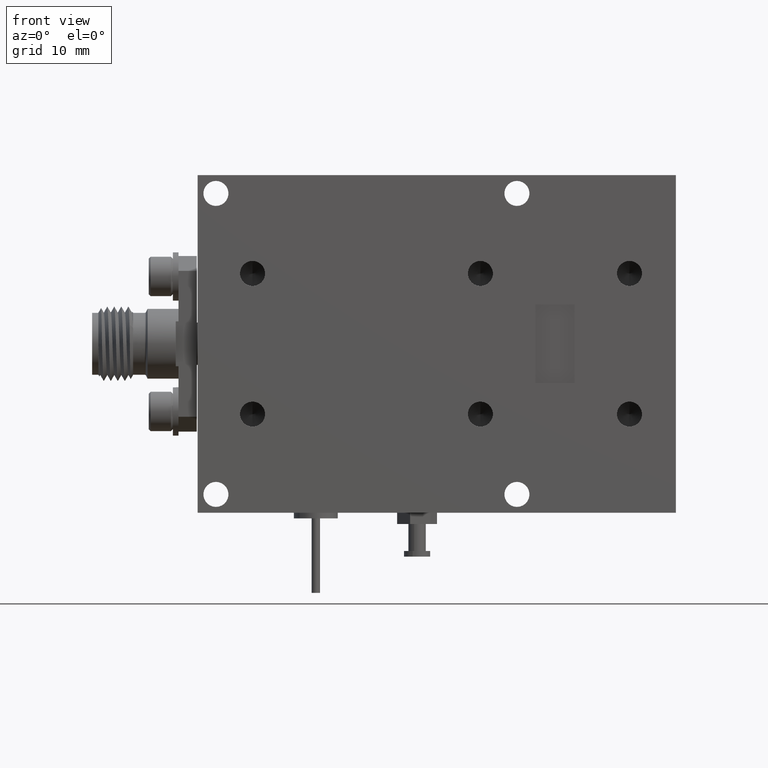
[diagram: clean part render]
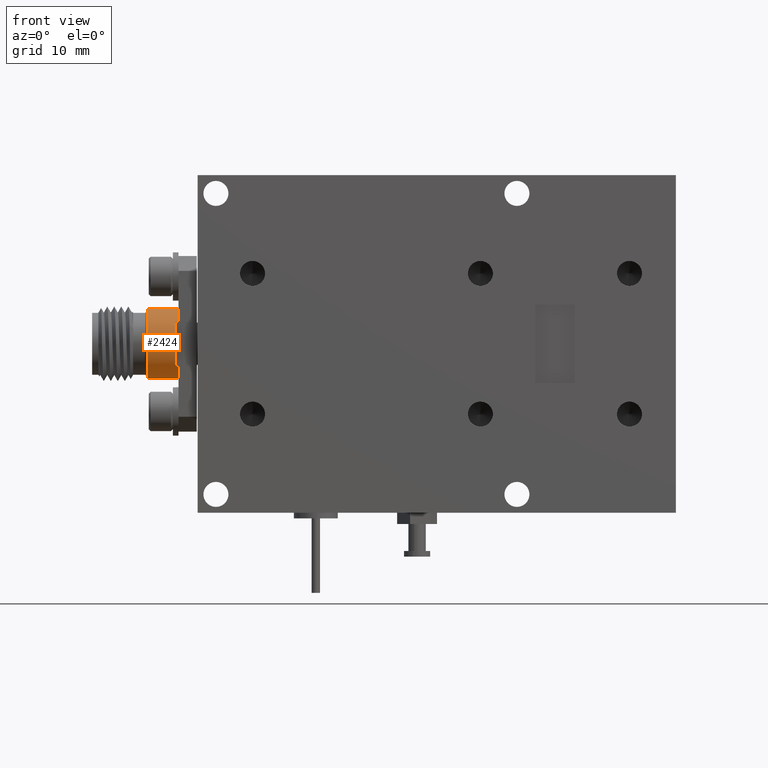
[diagram: same view with one face highlighted and labeled with its STEP entity id]
A machine part, front view. The second image highlights one B-rep face of the part: STEP entity #2424.
In plain terms, the highlighted cylindrical surface (edge-blend (fillet) strip) has radius 3.1496 mm, axis along (1, -0, -0).
Its self-contained STEP definition (entity closure, byte-faithful):
#54 = LINE ( 'NONE', #251, #10638 ) ;
#251 = CARTESIAN_POINT ( 'NONE',  ( -0.6779999999999999400, 0.1549999999999997200, 0.08019316156358830000 ) ) ;
#485 = ORIENTED_EDGE ( 'NONE', *, *, #3571, .F. ) ;
#547 = CARTESIAN_POINT ( 'NONE',  ( -0.6779999999999999400, 0.1549999999999997200, -0.07919316156358610600 ) ) ;
#878 = EDGE_LOOP ( 'NONE', ( #485, #4818, #5709, #11933, #8525, #1315, #1383, #10272 ) ) ;
#927 = VECTOR ( 'NONE', #13241, 39.37007874015748100 ) ;
#1087 = DIRECTION ( 'NONE',  ( 0.0000000000000000000, 0.0000000000000000000, 1.000000000000000000 ) ) ;
#1315 = ORIENTED_EDGE ( 'NONE', *, *, #9221, .T. ) ;
#1383 = ORIENTED_EDGE ( 'NONE', *, *, #6502, .T. ) ;
#1600 = CARTESIAN_POINT ( 'NONE',  ( -0.6779999999999999400, 0.1549999999999995800, 0.08019316156358830000 ) ) ;
#1625 = VERTEX_POINT ( 'NONE', #13250 ) ;
#1709 = CIRCLE ( 'NONE', #4775, 0.1240000000000002600 ) ;
#1876 = DIRECTION ( 'NONE',  ( 1.000000000000000000, -1.665334536944816800E-016, -1.526556658857922800E-016 ) ) ;
#2056 = AXIS2_PLACEMENT_3D ( 'NONE', #3343, #2348, #6300 ) ;
#2348 = DIRECTION ( 'NONE',  ( 1.000000000000000000, -1.665334536944816800E-016, -1.526556658857922800E-016 ) ) ;
#2424 = ADVANCED_FACE ( 'NONE', ( #12260 ), #11943, .T. ) ;
#2580 = VERTEX_POINT ( 'NONE', #13245 ) ;
#2622 = DIRECTION ( 'NONE',  ( 1.000000000000000000, -1.665334536944817100E-016, -1.110223024623489100E-016 ) ) ;
#2784 = VERTEX_POINT ( 'NONE', #8490 ) ;
#3256 = CARTESIAN_POINT ( 'NONE',  ( -0.6680000000000003700, 0.1549999999999997200, 0.08019316156358830000 ) ) ;
#3343 = CARTESIAN_POINT ( 'NONE',  ( -0.7780000000000000200, 0.2500000000000002200, 0.0005000000000010259900 ) ) ;
#3571 = EDGE_CURVE ( 'NONE', #2784, #12808, #8310, .T. ) ;
#3943 = CARTESIAN_POINT ( 'NONE',  ( -0.6680000000000003700, 0.2500000000000000600, 0.1245000000000010300 ) ) ;
#4069 = CARTESIAN_POINT ( 'NONE',  ( -0.7880000000000001400, 0.2500000000000001100, -0.1234999999999992500 ) ) ;
#4360 = AXIS2_PLACEMENT_3D ( 'NONE', #4840, #7858, #8909 ) ;
#4484 = DIRECTION ( 'NONE',  ( 1.000000000000000000, -1.665334536944816800E-016, -1.526556658857922800E-016 ) ) ;
#4775 = AXIS2_PLACEMENT_3D ( 'NONE', #5371, #8546, #1087 ) ;
#4786 = VERTEX_POINT ( 'NONE', #3256 ) ;
#4818 = ORIENTED_EDGE ( 'NONE', *, *, #12037, .T. ) ;
#4840 = CARTESIAN_POINT ( 'NONE',  ( -0.6779999999999999400, 0.2500000000000001100, 0.0005000000000010259900 ) ) ;
#5326 = EDGE_CURVE ( 'NONE', #2580, #1625, #1709, .T. ) ;
#5371 = CARTESIAN_POINT ( 'NONE',  ( -0.6680000000000003700, 0.2500000000000001100, 0.0005000000000010259900 ) ) ;
#5437 = AXIS2_PLACEMENT_3D ( 'NONE', #11033, #2622, #12078 ) ;
#5709 = ORIENTED_EDGE ( 'NONE', *, *, #12371, .T. ) ;
#5819 = EDGE_CURVE ( 'NONE', #4786, #12808, #8195, .T. ) ;
#6013 = DIRECTION ( 'NONE',  ( 1.000000000000000000, -1.665334536944817100E-016, -1.110223024623489100E-016 ) ) ;
#6300 = DIRECTION ( 'NONE',  ( 0.0000000000000000000, 0.0000000000000000000, 1.000000000000000000 ) ) ;
#6502 = EDGE_CURVE ( 'NONE', #9131, #4786, #54, .T. ) ;
#6764 = LINE ( 'NONE', #4069, #927 ) ;
#6877 = CARTESIAN_POINT ( 'NONE',  ( -0.7880000000000001400, 0.2500000000000001100, 0.1245000000000012900 ) ) ;
#7025 = AXIS2_PLACEMENT_3D ( 'NONE', #7723, #13148, #9999 ) ;
#7223 = CARTESIAN_POINT ( 'NONE',  ( -0.6779999999999999400, 0.1549999999999997200, -0.07919316156358610600 ) ) ;
#7436 = CIRCLE ( 'NONE', #2056, 0.1240000000000002600 ) ;
#7723 = CARTESIAN_POINT ( 'NONE',  ( -0.6680000000000003700, 0.2500000000000001100, 0.0005000000000010259900 ) ) ;
#7858 = DIRECTION ( 'NONE',  ( -1.000000000000000000, 1.665334536944816800E-016, 1.526556658857922800E-016 ) ) ;
#8195 = CIRCLE ( 'NONE', #7025, 0.1240000000000002600 ) ;
#8310 = LINE ( 'NONE', #6877, #8643 ) ;
#8490 = CARTESIAN_POINT ( 'NONE',  ( -0.7780000000000000200, 0.2500000000000000600, 0.1245000000000010300 ) ) ;
#8525 = ORIENTED_EDGE ( 'NONE', *, *, #9377, .F. ) ;
#8546 = DIRECTION ( 'NONE',  ( -1.000000000000000000, 1.665334536944816800E-016, 1.526556658857922800E-016 ) ) ;
#8643 = VECTOR ( 'NONE', #6013, 39.37007874015748100 ) ;
#8909 = DIRECTION ( 'NONE',  ( 0.0000000000000000000, 0.0000000000000000000, 1.000000000000000000 ) ) ;
#9131 = VERTEX_POINT ( 'NONE', #1600 ) ;
#9221 = EDGE_CURVE ( 'NONE', #9475, #9131, #11386, .T. ) ;
#9377 = EDGE_CURVE ( 'NONE', #9475, #1625, #9873, .T. ) ;
#9475 = VERTEX_POINT ( 'NONE', #547 ) ;
#9645 = VERTEX_POINT ( 'NONE', #10519 ) ;
#9873 = LINE ( 'NONE', #7223, #10210 ) ;
#9999 = DIRECTION ( 'NONE',  ( 0.0000000000000000000, 0.0000000000000000000, 1.000000000000000000 ) ) ;
#10210 = VECTOR ( 'NONE', #1876, 39.37007874015748100 ) ;
#10272 = ORIENTED_EDGE ( 'NONE', *, *, #5819, .T. ) ;
#10519 = CARTESIAN_POINT ( 'NONE',  ( -0.7780000000000000200, 0.2500000000000000600, -0.1234999999999989700 ) ) ;
#10638 = VECTOR ( 'NONE', #4484, 39.37007874015748100 ) ;
#11033 = CARTESIAN_POINT ( 'NONE',  ( -0.7880000000000001400, 0.2500000000000001100, 0.0005000000000010259900 ) ) ;
#11386 = CIRCLE ( 'NONE', #4360, 0.1240000000000002600 ) ;
#11933 = ORIENTED_EDGE ( 'NONE', *, *, #5326, .T. ) ;
#11943 = CYLINDRICAL_SURFACE ( 'NONE', #5437, 0.1240000000000002600 ) ;
#12037 = EDGE_CURVE ( 'NONE', #2784, #9645, #7436, .T. ) ;
#12078 = DIRECTION ( 'NONE',  ( 0.0000000000000000000, 0.0000000000000000000, -1.000000000000000000 ) ) ;
#12260 = FACE_OUTER_BOUND ( 'NONE', #878, .T. ) ;
#12371 = EDGE_CURVE ( 'NONE', #9645, #2580, #6764, .T. ) ;
#12808 = VERTEX_POINT ( 'NONE', #3943 ) ;
#13148 = DIRECTION ( 'NONE',  ( -1.000000000000000000, 1.665334536944816800E-016, 1.526556658857922800E-016 ) ) ;
#13241 = DIRECTION ( 'NONE',  ( 1.000000000000000000, -1.665334536944817100E-016, -1.110223024623489100E-016 ) ) ;
#13245 = CARTESIAN_POINT ( 'NONE',  ( -0.6680000000000003700, 0.2500000000000000600, -0.1234999999999989700 ) ) ;
#13250 = CARTESIAN_POINT ( 'NONE',  ( -0.6680000000000003700, 0.1549999999999998600, -0.07919316156358610600 ) ) ;